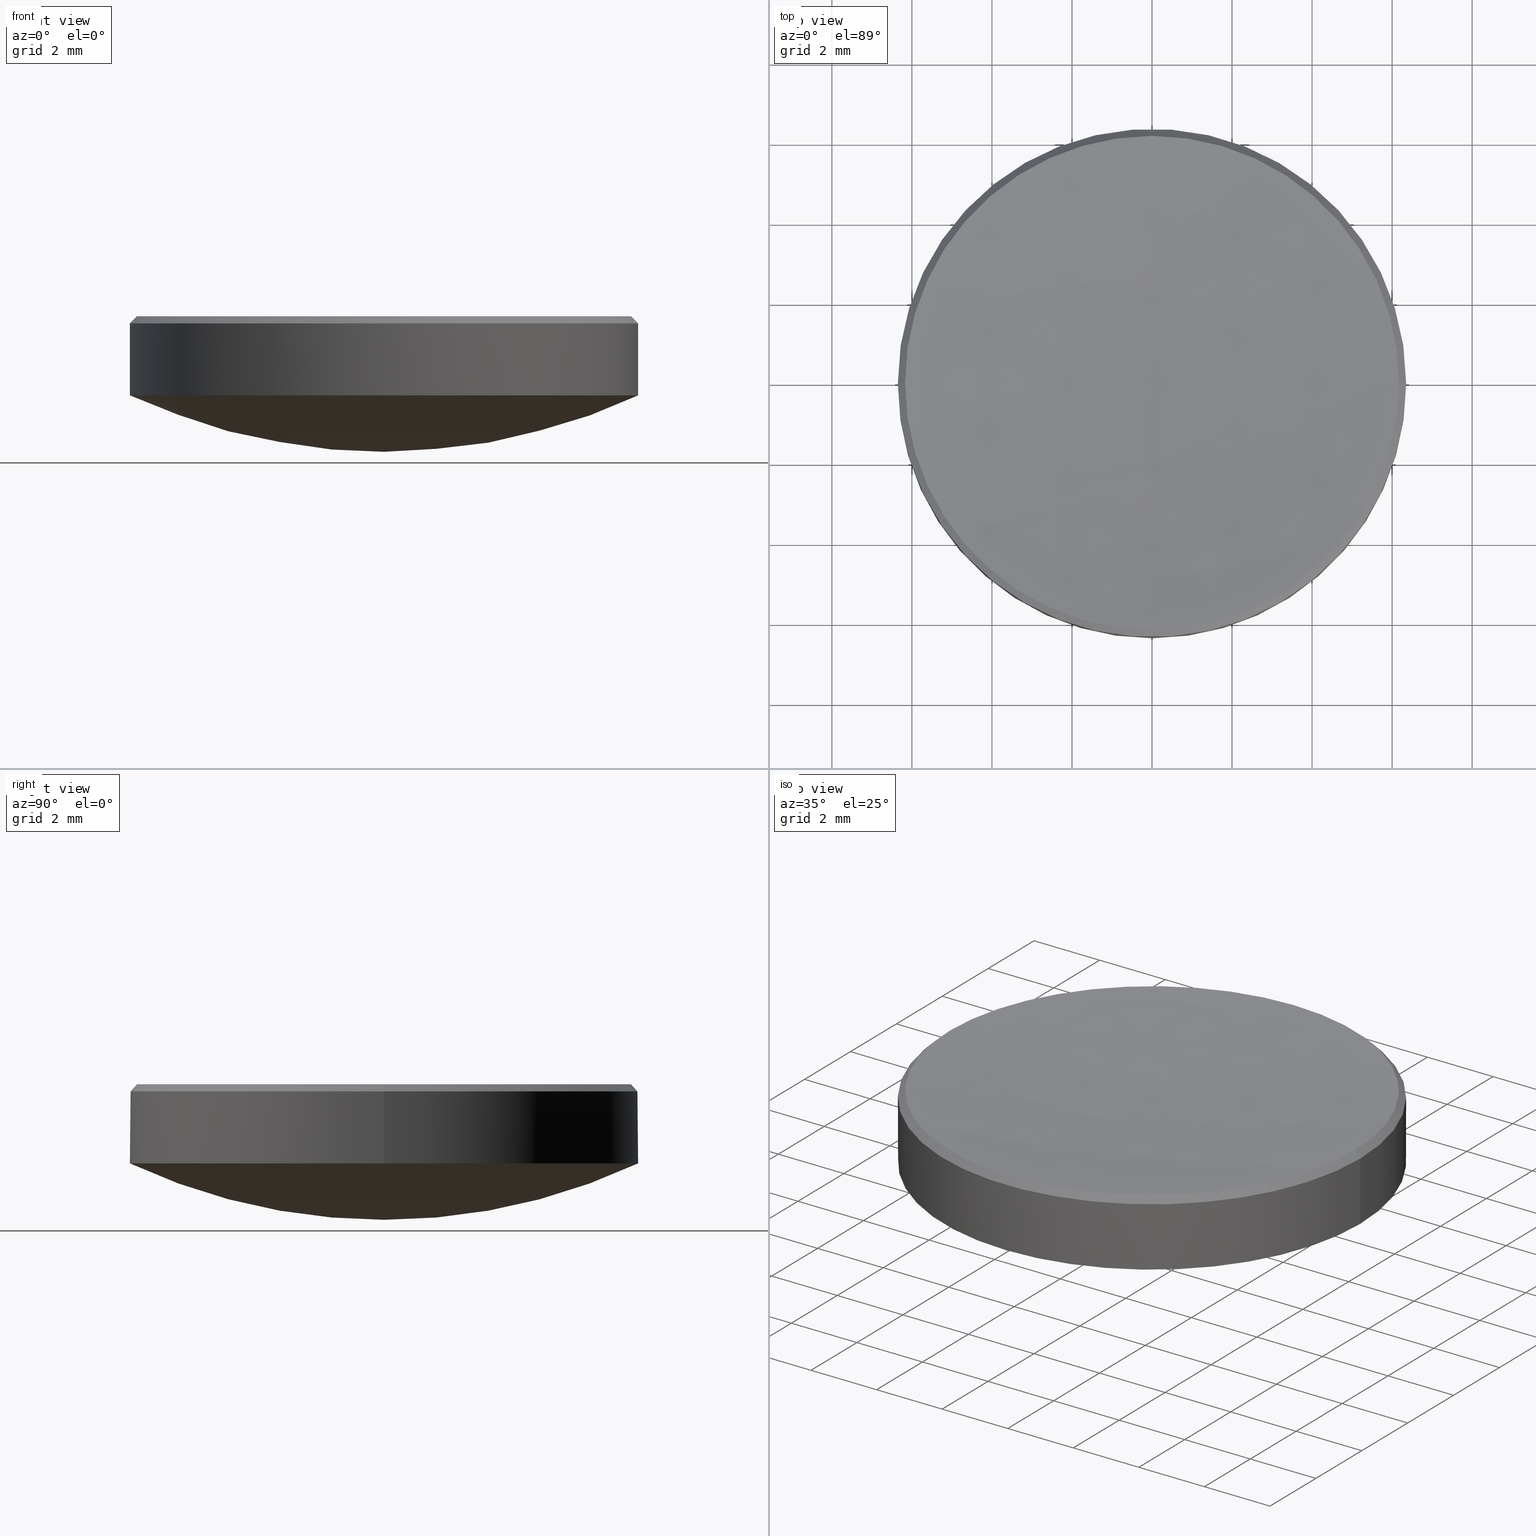
[diagram: canonical four-view strip — front | top / right | iso, engineering-drawing reading convention]
A machine part, canonical four-view strip (front | top / right | iso — engineering-drawing reading convention). The complete STEP part file that produces these views, byte-faithful:
ISO-10303-21;
HEADER;
FILE_DESCRIPTION (( 'STEP AP214' ),
    '1' );
FILE_NAME ('GLM5-012B-050-IR1.STEP',
    '2024-08-09T03:04:41',
    ( 'Windows User' ),
    ( 'P R C' ),
    'SwSTEP 2.0',
    'SolidWorks 2022',
    '' );
FILE_SCHEMA (( 'AUTOMOTIVE_DESIGN' ));
ENDSEC;

DATA;
#1 = MECHANICAL_DESIGN_GEOMETRIC_PRESENTATION_REPRESENTATION (  '', ( #236 ), #116 ) ;
#2 = ORIENTED_EDGE ( 'NONE', *, *, #268, .T. ) ;
#3 = EDGE_CURVE ( 'NONE', #138, #42, #12, .T. ) ;
#4 = ORIENTED_EDGE ( 'NONE', *, *, #241, .F. ) ;
#5 = ORIENTED_EDGE ( 'NONE', *, *, #209, .T. ) ;
#6 = CIRCLE ( 'NONE', #250, 6.349999999999998757 ) ;
#7 = DIRECTION ( 'NONE',  ( 0.000000000000000000, 0.000000000000000000, -1.000000000000000000 ) ) ;
#8 = EDGE_LOOP ( 'NONE', ( #245, #5, #205, #68 ) ) ;
#9 = FACE_OUTER_BOUND ( 'NONE', #114, .T. ) ;
#10 = ORIENTED_EDGE ( 'NONE', *, *, #133, .F. ) ;
#11 = CARTESIAN_POINT ( 'NONE',  ( 6.349999999999999645, 7.776507174585692163E-16, 10.00000000000000000 ) ) ;
#12 = CIRCLE ( 'NONE', #92, 15.00000000000000355 ) ;
#13 = DIRECTION ( 'NONE',  ( 0.000000000000000000, 0.000000000000000000, -1.000000000000000000 ) ) ;
#14 =( GEOMETRIC_REPRESENTATION_CONTEXT ( 3 ) GLOBAL_UNCERTAINTY_ASSIGNED_CONTEXT ( ( #164 ) ) GLOBAL_UNIT_ASSIGNED_CONTEXT ( ( #19, #218, #264 ) ) REPRESENTATION_CONTEXT ( 'NONE', 'WORKASPACE' ) );
#15 = DIRECTION ( 'NONE',  ( -0.000000000000000000, -0.000000000000000000, 1.000000000000000000 ) ) ;
#16 = DIRECTION ( 'NONE',  ( 1.000000000000000000, 0.000000000000000000, 0.000000000000000000 ) ) ;
#17 = DIRECTION ( 'NONE',  ( 0.000000000000000000, 1.000000000000000000, 0.000000000000000000 ) ) ;
#18 = VECTOR ( 'NONE', #244, 1000.000000000000000 ) ;
#19 =( LENGTH_UNIT ( ) NAMED_UNIT ( * ) SI_UNIT ( .MILLI., .METRE. ) );
#20 = VECTOR ( 'NONE', #222, 999.9999999999998863 ) ;
#21 = EDGE_LOOP ( 'NONE', ( #201, #134, #24, #251 ) ) ;
#22 = CARTESIAN_POINT ( 'NONE',  ( -6.349999999999999645, 0.000000000000000000, 10.00000000000000000 ) ) ;
#23 = PRODUCT_DEFINITION_SHAPE ( 'NONE', 'NONE',  #174 ) ;
#24 = ORIENTED_EDGE ( 'NONE', *, *, #133, .T. ) ;
#25 = ORIENTED_EDGE ( 'NONE', *, *, #214, .T. ) ;
#26 = AXIS2_PLACEMENT_3D ( 'NONE', #151, #105, #112 ) ;
#27 = DIRECTION ( 'NONE',  ( -0.000000000000000000, -0.000000000000000000, 1.000000000000000000 ) ) ;
#28 = DIRECTION ( 'NONE',  ( -0.000000000000000000, -0.000000000000000000, 1.000000000000000000 ) ) ;
#29 = DIRECTION ( 'NONE',  ( 1.000000000000000000, -0.000000000000000000, 0.000000000000000000 ) ) ;
#30 = ADVANCED_FACE ( 'NONE', ( #255 ), #229, .T. ) ;
#31 = CARTESIAN_POINT ( 'NONE',  ( -7.557706131380439534E-16, -6.171335389634308832, 5.978664610365742149 ) ) ;
#32 = AXIS2_PLACEMENT_3D ( 'NONE', #260, #55, #16 ) ;
#33 = AXIS2_PLACEMENT_3D ( 'NONE', #153, #79, #213 ) ;
#34 = DIRECTION ( 'NONE',  ( 1.000000000000000000, 0.000000000000000000, 0.000000000000000000 ) ) ;
#35 = CYLINDRICAL_SURFACE ( 'NONE', #107, 6.349999999999999645 ) ;
#36 = CARTESIAN_POINT ( 'NONE',  ( 0.000000000000000000, 0.000000000000000000, 58.41676735549417288 ) ) ;
#37 = UNCERTAINTY_MEASURE_WITH_UNIT (LENGTH_MEASURE( 1.000000000000000082E-05 ), #216, 'distance_accuracy_value', 'NONE');
#38 = DIRECTION ( 'NONE',  ( 1.000000000000000000, 0.000000000000000000, 0.000000000000000000 ) ) ;
#39 = AXIS2_PLACEMENT_3D ( 'NONE', #73, #161, #188 ) ;
#40 = DIRECTION ( 'NONE',  ( 1.000000000000000000, 0.000000000000000000, 0.000000000000000000 ) ) ;
#41 = CIRCLE ( 'NONE', #169, 6.349999999999999645 ) ;
#42 = VERTEX_POINT ( 'NONE', #202 ) ;
#43 = STYLED_ITEM ( 'NONE', ( #102 ), #220 ) ;
#44 = ORIENTED_EDGE ( 'NONE', *, *, #108, .F. ) ;
#45 = VERTEX_POINT ( 'NONE', #179 ) ;
#46 = ORIENTED_EDGE ( 'NONE', *, *, #54, .F. ) ;
#47 = AXIS2_PLACEMENT_3D ( 'NONE', #141, #118, #98 ) ;
#48 = DIRECTION ( 'NONE',  ( -0.000000000000000000, -0.000000000000000000, -1.000000000000000000 ) ) ;
#49 = ORIENTED_EDGE ( 'NONE', *, *, #187, .T. ) ;
#50 = ADVANCED_FACE ( 'NONE', ( #103 ), #234, .T. ) ;
#51 = CARTESIAN_POINT ( 'NONE',  ( 0.000000000000000000, 9.184850993605149917E-16, 2.589610001762374214 ) ) ;
#52 = DIRECTION ( 'NONE',  ( 0.000000000000000000, 0.000000000000000000, -1.000000000000000000 ) ) ;
#53 = DIRECTION ( 'NONE',  ( 0.000000000000000000, 1.000000000000000000, 0.000000000000000000 ) ) ;
#54 = EDGE_CURVE ( 'NONE', #131, #42, #230, .T. ) ;
#55 = DIRECTION ( 'NONE',  ( -0.000000000000000000, -0.000000000000000000, 1.000000000000000000 ) ) ;
#56 = CARTESIAN_POINT ( 'NONE',  ( 0.000000000000000000, 0.000000000000000000, 5.978664610365724386 ) ) ;
#57 = SURFACE_STYLE_USAGE ( .BOTH. , #167 ) ;
#58 = CIRCLE ( 'NONE', #223, 6.171335389634259094 ) ;
#59 = AXIS2_PLACEMENT_3D ( 'NONE', #247, #15, #178 ) ;
#60 = COLOUR_RGB ( '',1.000000000000000000, 1.000000000000000000, 1.000000000000000000 ) ;
#61 = ORIENTED_EDGE ( 'NONE', *, *, #86, .T. ) ;
#62 = DIRECTION ( 'NONE',  ( -1.000000000000000000, 0.000000000000000000, 0.000000000000000000 ) ) ;
#63 = ORIENTED_EDGE ( 'NONE', *, *, #128, .F. ) ;
#64 = AXIS2_PLACEMENT_3D ( 'NONE', #176, #27, #34 ) ;
#65 = APPLICATION_CONTEXT ( 'automotive_design' ) ;
#66 = APPLICATION_PROTOCOL_DEFINITION ( 'draft international standard', 'automotive_design', 1998, #171 ) ;
#67 = DIRECTION ( 'NONE',  ( 1.000000000000000000, 0.000000000000000000, 0.000000000000000000 ) ) ;
#68 = ORIENTED_EDGE ( 'NONE', *, *, #268, .F. ) ;
#69 = CARTESIAN_POINT ( 'NONE',  ( 0.000000000000000000, 0.000000000000000000, 5.978664610365724386 ) ) ;
#70 = AXIS2_PLACEMENT_3D ( 'NONE', #149, #125, #38 ) ;
#71 = ORIENTED_EDGE ( 'NONE', *, *, #128, .T. ) ;
#72 = ADVANCED_FACE ( 'NONE', ( #99 ), #35, .T. ) ;
#73 = CARTESIAN_POINT ( 'NONE',  ( 0.000000000000000000, 0.000000000000000000, 58.41676735549417288 ) ) ;
#74 = CARTESIAN_POINT ( 'NONE',  ( 0.000000000000000000, 0.000000000000000000, 17.58961000176237732 ) ) ;
#75 = DIRECTION ( 'NONE',  ( -1.000000000000000000, 0.000000000000000000, 0.000000000000000000 ) ) ;
#76 = DIRECTION ( 'NONE',  ( 1.000000000000000000, 0.000000000000000000, 0.000000000000000000 ) ) ;
#77 = DIRECTION ( 'NONE',  ( 0.000000000000000000, 1.000000000000000000, 0.000000000000000000 ) ) ;
#78 = ADVANCED_FACE ( 'NONE', ( #232 ), #206, .F. ) ;
#79 = DIRECTION ( 'NONE',  ( -0.000000000000000000, -0.000000000000000000, 1.000000000000000000 ) ) ;
#80 = AXIS2_PLACEMENT_3D ( 'NONE', #124, #123, #67 ) ;
#81 = AXIS2_PLACEMENT_3D ( 'NONE', #36, #82, #189 ) ;
#82 = DIRECTION ( 'NONE',  ( -1.000000000000000000, 1.224646799147353207E-16, 0.000000000000000000 ) ) ;
#83 = LINE ( 'NONE', #11, #132 ) ;
#84 = CARTESIAN_POINT ( 'NONE',  ( -7.776507174585693149E-16, -6.350000000000001421, 3.999999999999999112 ) ) ;
#85 = SPHERICAL_SURFACE ( 'NONE', #192, 52.79999999999999005 ) ;
#86 = EDGE_CURVE ( 'NONE', #254, #131, #115, .T. ) ;
#87 = ADVANCED_FACE ( 'NONE', ( #144 ), #101, .T. ) ;
#88 = CIRCLE ( 'NONE', #64, 6.171335389634259094 ) ;
#89 = CIRCLE ( 'NONE', #33, 6.349999999999998757 ) ;
#90 =( NAMED_UNIT ( * ) SI_UNIT ( $, .STERADIAN. ) SOLID_ANGLE_UNIT ( ) );
#91 = ORIENTED_EDGE ( 'NONE', *, *, #86, .F. ) ;
#92 = AXIS2_PLACEMENT_3D ( 'NONE', #74, #29, #13 ) ;
#93 = CIRCLE ( 'NONE', #26, 6.349999999999999645 ) ;
#94 = CARTESIAN_POINT ( 'NONE',  ( 0.000000000000000000, 0.000000000000000000, 4.000000000000000000 ) ) ;
#95 = VERTEX_POINT ( 'NONE', #203 ) ;
#96 = EDGE_CURVE ( 'NONE', #45, #196, #119, .T. ) ;
#97 = CARTESIAN_POINT ( 'NONE',  ( -6.349999999999998757, 0.000000000000000000, 4.000000000000000000 ) ) ;
#98 = DIRECTION ( 'NONE',  ( -1.000000000000000000, 0.000000000000000000, 0.000000000000000000 ) ) ;
#99 = FACE_OUTER_BOUND ( 'NONE', #154, .T. ) ;
#100 = CARTESIAN_POINT ( 'NONE',  ( 0.000000000000000000, 0.000000000000000000, 5.978664610365738596 ) ) ;
#101 = SPHERICAL_SURFACE ( 'NONE', #259, 15.00000000000000355 ) ;
#102 = PRESENTATION_STYLE_ASSIGNMENT (( #253 ) ) ;
#103 = FACE_OUTER_BOUND ( 'NONE', #8, .T. ) ;
#104 = DIRECTION ( 'NONE',  ( 0.7071067811865716646, 8.659560562355227448E-17, -0.7071067811865234809 ) ) ;
#105 = DIRECTION ( 'NONE',  ( 0.000000000000000000, 0.000000000000000000, -1.000000000000000000 ) ) ;
#106 = CARTESIAN_POINT ( 'NONE',  ( 0.000000000000000000, 0.000000000000000000, 58.41676735549417288 ) ) ;
#107 = AXIS2_PLACEMENT_3D ( 'NONE', #121, #180, #75 ) ;
#108 = EDGE_CURVE ( 'NONE', #195, #95, #212, .T. ) ;
#109 =( NAMED_UNIT ( * ) PLANE_ANGLE_UNIT ( ) SI_UNIT ( $, .RADIAN. ) );
#110 = ORIENTED_EDGE ( 'NONE', *, *, #270, .T. ) ;
#111 = MECHANICAL_DESIGN_GEOMETRIC_PRESENTATION_REPRESENTATION (  '', ( #43 ), #262 ) ;
#112 = DIRECTION ( 'NONE',  ( 1.000000000000000000, 0.000000000000000000, 0.000000000000000000 ) ) ;
#113 = ORIENTED_EDGE ( 'NONE', *, *, #54, .T. ) ;
#114 = EDGE_LOOP ( 'NONE', ( #246, #272, #152, #49, #143 ) ) ;
#115 = CIRCLE ( 'NONE', #70, 6.349999999999998757 ) ;
#116 =( GEOMETRIC_REPRESENTATION_CONTEXT ( 3 ) GLOBAL_UNCERTAINTY_ASSIGNED_CONTEXT ( ( #37 ) ) GLOBAL_UNIT_ASSIGNED_CONTEXT ( ( #216, #109, #90 ) ) REPRESENTATION_CONTEXT ( 'NONE', 'WORKASPACE' ) );
#117 = ORIENTED_EDGE ( 'NONE', *, *, #282, .F. ) ;
#118 = DIRECTION ( 'NONE',  ( -0.000000000000000000, -0.000000000000000000, -1.000000000000000000 ) ) ;
#119 = LINE ( 'NONE', #165, #150 ) ;
#120 = ORIENTED_EDGE ( 'NONE', *, *, #96, .T. ) ;
#121 = CARTESIAN_POINT ( 'NONE',  ( 0.000000000000000000, 0.000000000000000000, 10.00000000000000000 ) ) ;
#122 = CIRCLE ( 'NONE', #81, 52.79999999999999005 ) ;
#123 = DIRECTION ( 'NONE',  ( -0.000000000000000000, -0.000000000000000000, 1.000000000000000000 ) ) ;
#124 = CARTESIAN_POINT ( 'NONE',  ( 0.000000000000000000, 0.000000000000000000, 5.978664610365738596 ) ) ;
#125 = DIRECTION ( 'NONE',  ( -0.000000000000000000, -0.000000000000000000, 1.000000000000000000 ) ) ;
#126 = DIRECTION ( 'NONE',  ( -1.000000000000000000, 0.000000000000000000, 0.000000000000000000 ) ) ;
#127 = CIRCLE ( 'NONE', #80, 6.171335389634259094 ) ;
#128 = EDGE_CURVE ( 'NONE', #196, #131, #83, .T. ) ;
#129 = SURFACE_STYLE_FILL_AREA ( #130 ) ;
#130 = FILL_AREA_STYLE ('',( #242 ) ) ;
#131 = VERTEX_POINT ( 'NONE', #257 ) ;
#132 = VECTOR ( 'NONE', #48, 1000.000000000000000 ) ;
#133 = EDGE_CURVE ( 'NONE', #95, #135, #88, .T. ) ;
#134 = ORIENTED_EDGE ( 'NONE', *, *, #108, .T. ) ;
#135 = VERTEX_POINT ( 'NONE', #158 ) ;
#136 = PRODUCT_CONTEXT ( 'NONE', #65, 'mechanical' ) ;
#137 = DIRECTION ( 'NONE',  ( 1.000000000000000000, 0.000000000000000000, 0.000000000000000000 ) ) ;
#138 = VERTEX_POINT ( 'NONE', #51 ) ;
#139 = EDGE_CURVE ( 'NONE', #193, #254, #6, .T. ) ;
#140 = DIRECTION ( 'NONE',  ( -1.000000000000000000, 1.224646799147353207E-16, 0.000000000000000000 ) ) ;
#141 = CARTESIAN_POINT ( 'NONE',  ( 0.000000000000000000, 0.000000000000000000, 10.00000000000000000 ) ) ;
#142 =( LENGTH_UNIT ( ) NAMED_UNIT ( * ) SI_UNIT ( .MILLI., .METRE. ) );
#143 = ORIENTED_EDGE ( 'NONE', *, *, #168, .F. ) ;
#144 = FACE_OUTER_BOUND ( 'NONE', #172, .T. ) ;
#145 =( NAMED_UNIT ( * ) SI_UNIT ( $, .STERADIAN. ) SOLID_ANGLE_UNIT ( ) );
#146 = VERTEX_POINT ( 'NONE', #31 ) ;
#147 = LINE ( 'NONE', #159, #20 ) ;
#148 = FACE_OUTER_BOUND ( 'NONE', #221, .T. ) ;
#149 = CARTESIAN_POINT ( 'NONE',  ( 0.000000000000000000, 0.000000000000000000, 4.000000000000000000 ) ) ;
#150 = VECTOR ( 'NONE', #104, 999.9999999999998863 ) ;
#151 = CARTESIAN_POINT ( 'NONE',  ( 0.000000000000000000, 0.000000000000000000, 5.800000000000006928 ) ) ;
#152 = ORIENTED_EDGE ( 'NONE', *, *, #238, .F. ) ;
#153 = CARTESIAN_POINT ( 'NONE',  ( 0.000000000000000000, 0.000000000000000000, 4.000000000000000000 ) ) ;
#154 = EDGE_LOOP ( 'NONE', ( #243, #71, #113, #2, #117 ) ) ;
#155 = ORIENTED_EDGE ( 'NONE', *, *, #263, .F. ) ;
#156 = CARTESIAN_POINT ( 'NONE',  ( -6.349999999999999645, 0.000000000000000000, 5.800000000000006928 ) ) ;
#157 = ORIENTED_EDGE ( 'NONE', *, *, #209, .F. ) ;
#158 = CARTESIAN_POINT ( 'NONE',  ( -6.171335389634259094, 0.000000000000000000, 5.978664610365738596 ) ) ;
#159 = CARTESIAN_POINT ( 'NONE',  ( -6.171335389634268864, 0.000000000000000000, 5.978664610365724386 ) ) ;
#160 = EDGE_LOOP ( 'NONE', ( #63, #194, #224, #276, #61 ) ) ;
#161 = DIRECTION ( 'NONE',  ( 1.000000000000000000, 0.000000000000000000, 0.000000000000000000 ) ) ;
#162 = DIRECTION ( 'NONE',  ( 0.000000000000000000, 1.000000000000000000, 0.000000000000000000 ) ) ;
#163 = DIRECTION ( 'NONE',  ( -1.224646799147352961E-16, -1.000000000000000000, 0.000000000000000000 ) ) ;
#164 = UNCERTAINTY_MEASURE_WITH_UNIT (LENGTH_MEASURE( 1.000000000000000082E-05 ), #19, 'distance_accuracy_value', 'NONE');
#165 = CARTESIAN_POINT ( 'NONE',  ( 6.171335389634268864, 7.557706131380392202E-16, 5.978664610365724386 ) ) ;
#166 = LINE ( 'NONE', #22, #18 ) ;
#167 = SURFACE_SIDE_STYLE ('',( #129 ) ) ;
#168 = EDGE_CURVE ( 'NONE', #196, #228, #41, .T. ) ;
#169 = AXIS2_PLACEMENT_3D ( 'NONE', #275, #7, #76 ) ;
#170 = PRODUCT_DEFINITION_FORMATION_WITH_SPECIFIED_SOURCE ( '�κ�', '', #186, .NOT_KNOWN. ) ;
#171 = APPLICATION_CONTEXT ( 'automotive_design' ) ;
#172 = EDGE_LOOP ( 'NONE', ( #157, #267, #46, #91 ) ) ;
#173 = CIRCLE ( 'NONE', #197, 15.00000000000000355 ) ;
#174 = PRODUCT_DEFINITION ( 'δ֪', '', #170, #249 ) ;
#175 = ORIENTED_EDGE ( 'NONE', *, *, #241, .T. ) ;
#176 = CARTESIAN_POINT ( 'NONE',  ( 0.000000000000000000, 0.000000000000000000, 5.978664610365738596 ) ) ;
#177 = ORIENTED_EDGE ( 'NONE', *, *, #187, .F. ) ;
#178 = DIRECTION ( 'NONE',  ( 1.000000000000000000, 0.000000000000000000, 0.000000000000000000 ) ) ;
#179 = CARTESIAN_POINT ( 'NONE',  ( 6.171335389634259094, 7.667106652983034787E-16, 5.978664610365738596 ) ) ;
#180 = DIRECTION ( 'NONE',  ( -0.000000000000000000, -0.000000000000000000, -1.000000000000000000 ) ) ;
#181 = AXIS2_PLACEMENT_3D ( 'NONE', #183, #227, #17 ) ;
#182 = PRODUCT_RELATED_PRODUCT_CATEGORY ( 'part', '', ( #186 ) ) ;
#183 = CARTESIAN_POINT ( 'NONE',  ( 0.000000000000000000, 0.000000000000000000, 17.58961000176237732 ) ) ;
#184 = DIRECTION ( 'NONE',  ( -0.000000000000000000, -0.000000000000000000, 1.000000000000000000 ) ) ;
#185 =( NAMED_UNIT ( * ) PLANE_ANGLE_UNIT ( ) SI_UNIT ( $, .RADIAN. ) );
#186 = PRODUCT ( 'GLM5-012B-050-IR1', 'GLM5-012B-050-IR1', '', ( #136 ) ) ;
#187 = EDGE_CURVE ( 'NONE', #135, #228, #147, .T. ) ;
#188 = DIRECTION ( 'NONE',  ( 0.000000000000000000, 0.000000000000000000, -1.000000000000000000 ) ) ;
#189 = DIRECTION ( 'NONE',  ( -1.224646799147353207E-16, -1.000000000000000000, 0.000000000000000000 ) ) ;
#190 = AXIS2_PLACEMENT_3D ( 'NONE', #279, #210, #162 ) ;
#191 = COLOUR_RGB ( '',1.000000000000000000, 1.000000000000000000, 1.000000000000000000 ) ;
#192 = AXIS2_PLACEMENT_3D ( 'NONE', #106, #281, #53 ) ;
#193 = VERTEX_POINT ( 'NONE', #97 ) ;
#194 = ORIENTED_EDGE ( 'NONE', *, *, #168, .T. ) ;
#195 = VERTEX_POINT ( 'NONE', #200 ) ;
#196 = VERTEX_POINT ( 'NONE', #231 ) ;
#197 = AXIS2_PLACEMENT_3D ( 'NONE', #271, #140, #163 ) ;
#198 = CONICAL_SURFACE ( 'NONE', #219, 6.171335389634268864, 0.7853981633974822518 ) ;
#199 = SHAPE_DEFINITION_REPRESENTATION ( #23, #258 ) ;
#200 = CARTESIAN_POINT ( 'NONE',  ( 0.000000000000000000, 3.233067549749012013E-15, 5.616767355494177494 ) ) ;
#201 = ORIENTED_EDGE ( 'NONE', *, *, #270, .F. ) ;
#202 = CARTESIAN_POINT ( 'NONE',  ( 0.000000000000000000, 6.350000000000001421, 3.999999999999999112 ) ) ;
#203 = CARTESIAN_POINT ( 'NONE',  ( 0.000000000000000000, 6.171335389634308832, 5.978664610365742149 ) ) ;
#204 = FILL_AREA_STYLE_COLOUR ( '', #60 ) ;
#205 = ORIENTED_EDGE ( 'NONE', *, *, #139, .F. ) ;
#206 = SPHERICAL_SURFACE ( 'NONE', #190, 52.79999999999999005 ) ;
#207 = CIRCLE ( 'NONE', #59, 6.171335389634259094 ) ;
#208 = SURFACE_SIDE_STYLE ('',( #226 ) ) ;
#209 = EDGE_CURVE ( 'NONE', #138, #254, #173, .T. ) ;
#210 = DIRECTION ( 'NONE',  ( -1.000000000000000000, 0.000000000000000000, 0.000000000000000000 ) ) ;
#211 = APPLICATION_PROTOCOL_DEFINITION ( 'draft international standard', 'automotive_design', 1998, #65 ) ;
#212 = CIRCLE ( 'NONE', #39, 52.79999999999999005 ) ;
#213 = DIRECTION ( 'NONE',  ( 1.000000000000000000, 0.000000000000000000, 0.000000000000000000 ) ) ;
#214 = EDGE_CURVE ( 'NONE', #146, #45, #127, .T. ) ;
#215 = ADVANCED_FACE ( 'NONE', ( #9 ), #235, .T. ) ;
#216 =( LENGTH_UNIT ( ) NAMED_UNIT ( * ) SI_UNIT ( .MILLI., .METRE. ) );
#217 = EDGE_LOOP ( 'NONE', ( #4, #120, #155, #177, #10 ) ) ;
#218 =( NAMED_UNIT ( * ) PLANE_ANGLE_UNIT ( ) SI_UNIT ( $, .RADIAN. ) );
#219 = AXIS2_PLACEMENT_3D ( 'NONE', #56, #280, #62 ) ;
#220 = MANIFOLD_SOLID_BREP ( '����1', #269 ) ;
#221 = EDGE_LOOP ( 'NONE', ( #44, #110, #25, #175 ) ) ;
#222 = DIRECTION ( 'NONE',  ( -0.7071067811865716646, 0.000000000000000000, -0.7071067811865234809 ) ) ;
#223 = AXIS2_PLACEMENT_3D ( 'NONE', #100, #184, #277 ) ;
#224 = ORIENTED_EDGE ( 'NONE', *, *, #282, .T. ) ;
#225 = PRESENTATION_LAYER_ASSIGNMENT (  '', '', ( #43 ) ) ;
#226 = SURFACE_STYLE_FILL_AREA ( #273 ) ;
#227 = DIRECTION ( 'NONE',  ( -1.000000000000000000, 0.000000000000000000, 0.000000000000000000 ) ) ;
#228 = VERTEX_POINT ( 'NONE', #156 ) ;
#229 = CYLINDRICAL_SURFACE ( 'NONE', #47, 6.349999999999999645 ) ;
#230 = CIRCLE ( 'NONE', #32, 6.349999999999998757 ) ;
#231 = CARTESIAN_POINT ( 'NONE',  ( 6.349999999999999645, 7.776507174585692163E-16, 5.800000000000006928 ) ) ;
#232 = FACE_OUTER_BOUND ( 'NONE', #21, .T. ) ;
#233 = FACE_OUTER_BOUND ( 'NONE', #217, .T. ) ;
#234 = SPHERICAL_SURFACE ( 'NONE', #181, 15.00000000000000355 ) ;
#235 = CONICAL_SURFACE ( 'NONE', #239, 6.171335389634268864, 0.7853981633974822518 ) ;
#236 = STYLED_ITEM ( 'NONE', ( #261 ), #258 ) ;
#237 = DIRECTION ( 'NONE',  ( 0.000000000000000000, 0.000000000000000000, 1.000000000000000000 ) ) ;
#238 = EDGE_CURVE ( 'NONE', #135, #146, #207, .T. ) ;
#239 = AXIS2_PLACEMENT_3D ( 'NONE', #69, #52, #248 ) ;
#240 = PRESENTATION_LAYER_ASSIGNMENT (  '', '', ( #236 ) ) ;
#241 = EDGE_CURVE ( 'NONE', #45, #95, #58, .T. ) ;
#242 = FILL_AREA_STYLE_COLOUR ( '', #191 ) ;
#243 = ORIENTED_EDGE ( 'NONE', *, *, #263, .T. ) ;
#244 = DIRECTION ( 'NONE',  ( -0.000000000000000000, -0.000000000000000000, -1.000000000000000000 ) ) ;
#245 = ORIENTED_EDGE ( 'NONE', *, *, #3, .F. ) ;
#246 = ORIENTED_EDGE ( 'NONE', *, *, #96, .F. ) ;
#247 = CARTESIAN_POINT ( 'NONE',  ( 0.000000000000000000, 0.000000000000000000, 5.978664610365738596 ) ) ;
#248 = DIRECTION ( 'NONE',  ( -1.000000000000000000, 0.000000000000000000, 0.000000000000000000 ) ) ;
#249 = PRODUCT_DEFINITION_CONTEXT ( 'detailed design', #171, 'design' ) ;
#250 = AXIS2_PLACEMENT_3D ( 'NONE', #94, #28, #137 ) ;
#251 = ORIENTED_EDGE ( 'NONE', *, *, #238, .T. ) ;
#252 = ADVANCED_FACE ( 'NONE', ( #148 ), #85, .F. ) ;
#253 = SURFACE_STYLE_USAGE ( .BOTH. , #208 ) ;
#254 = VERTEX_POINT ( 'NONE', #84 ) ;
#255 = FACE_OUTER_BOUND ( 'NONE', #160, .T. ) ;
#256 = ADVANCED_FACE ( 'NONE', ( #233 ), #198, .T. ) ;
#257 = CARTESIAN_POINT ( 'NONE',  ( 6.349999999999998757, 7.776507174585691177E-16, 4.000000000000000000 ) ) ;
#258 = ADVANCED_BREP_SHAPE_REPRESENTATION ( 'GLM5-012B-050-IR1', ( #220, #265 ), #14 ) ;
#259 = AXIS2_PLACEMENT_3D ( 'NONE', #274, #126, #77 ) ;
#260 = CARTESIAN_POINT ( 'NONE',  ( 0.000000000000000000, 0.000000000000000000, 4.000000000000000000 ) ) ;
#261 = PRESENTATION_STYLE_ASSIGNMENT (( #57 ) ) ;
#262 =( GEOMETRIC_REPRESENTATION_CONTEXT ( 3 ) GLOBAL_UNCERTAINTY_ASSIGNED_CONTEXT ( ( #278 ) ) GLOBAL_UNIT_ASSIGNED_CONTEXT ( ( #142, #185, #145 ) ) REPRESENTATION_CONTEXT ( 'NONE', 'WORKASPACE' ) );
#263 = EDGE_CURVE ( 'NONE', #228, #196, #93, .T. ) ;
#264 =( NAMED_UNIT ( * ) SI_UNIT ( $, .STERADIAN. ) SOLID_ANGLE_UNIT ( ) );
#265 = AXIS2_PLACEMENT_3D ( 'NONE', #266, #237, #40 ) ;
#266 = CARTESIAN_POINT ( 'NONE',  ( 0.000000000000000000, 0.000000000000000000, 0.000000000000000000 ) ) ;
#267 = ORIENTED_EDGE ( 'NONE', *, *, #3, .T. ) ;
#268 = EDGE_CURVE ( 'NONE', #42, #193, #89, .T. ) ;
#269 = CLOSED_SHELL ( 'NONE', ( #256, #252, #50, #72, #30, #87, #78, #215 ) ) ;
#270 = EDGE_CURVE ( 'NONE', #195, #146, #122, .T. ) ;
#271 = CARTESIAN_POINT ( 'NONE',  ( 0.000000000000000000, 0.000000000000000000, 17.58961000176237732 ) ) ;
#272 = ORIENTED_EDGE ( 'NONE', *, *, #214, .F. ) ;
#273 = FILL_AREA_STYLE ('',( #204 ) ) ;
#274 = CARTESIAN_POINT ( 'NONE',  ( 0.000000000000000000, 0.000000000000000000, 17.58961000176237732 ) ) ;
#275 = CARTESIAN_POINT ( 'NONE',  ( 0.000000000000000000, 0.000000000000000000, 5.800000000000006928 ) ) ;
#276 = ORIENTED_EDGE ( 'NONE', *, *, #139, .T. ) ;
#277 = DIRECTION ( 'NONE',  ( 1.000000000000000000, 0.000000000000000000, 0.000000000000000000 ) ) ;
#278 = UNCERTAINTY_MEASURE_WITH_UNIT (LENGTH_MEASURE( 1.000000000000000082E-05 ), #142, 'distance_accuracy_value', 'NONE');
#279 = CARTESIAN_POINT ( 'NONE',  ( 0.000000000000000000, 0.000000000000000000, 58.41676735549417288 ) ) ;
#280 = DIRECTION ( 'NONE',  ( 0.000000000000000000, 0.000000000000000000, -1.000000000000000000 ) ) ;
#281 = DIRECTION ( 'NONE',  ( -1.000000000000000000, 0.000000000000000000, 0.000000000000000000 ) ) ;
#282 = EDGE_CURVE ( 'NONE', #228, #193, #166, .T. ) ;
ENDSEC;
END-ISO-10303-21;
